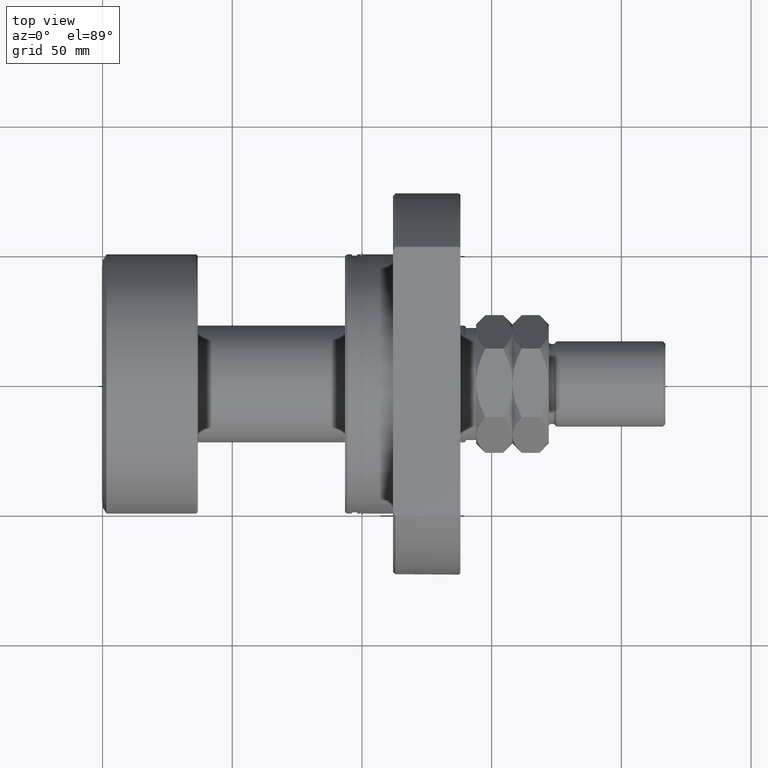
[diagram: clean part render]
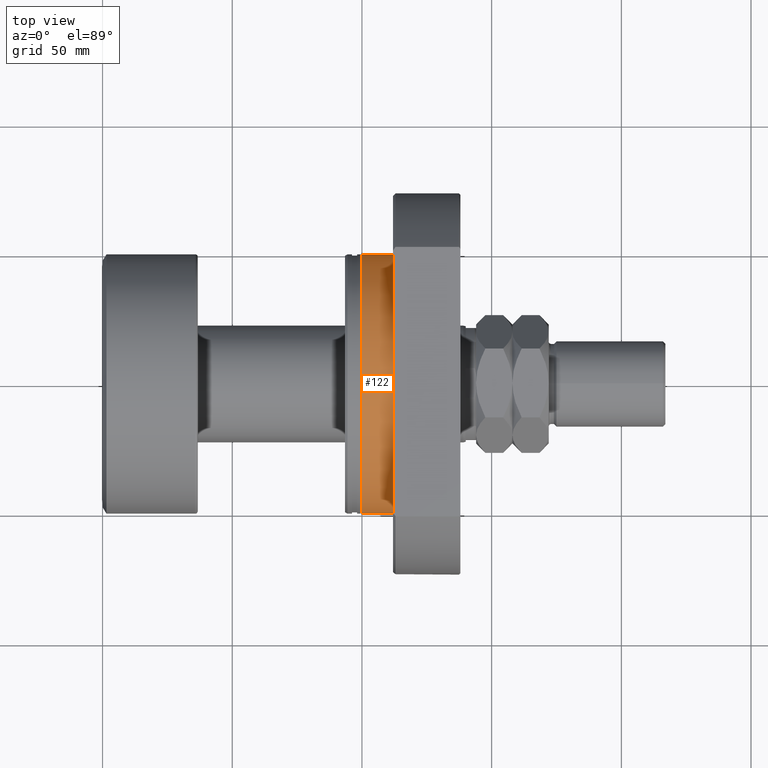
[diagram: same view with one face highlighted and labeled with its STEP entity id]
A machine part, top view. The second image highlights one B-rep face of the part: STEP entity #122.
In plain terms, the highlighted cylindrical surface (partial cylindrical patch) has radius 50 mm, axis along (1, 0, 0).
Its self-contained STEP definition (entity closure, byte-faithful):
#34 = CARTESIAN_POINT ( 'NONE',  ( 18.50000000000000355, -50.00000000000000000, 6.123233995736766085E-15 ) ) ;
#122 = ADVANCED_FACE ( 'NONE', ( #4687 ), #585, .T. ) ;
#182 = DIRECTION ( 'NONE',  ( 1.000000000000000000, 5.504030557965630938E-17, -0.000000000000000000 ) ) ;
#244 = DIRECTION ( 'NONE',  ( 1.000000000000000000, 5.504030557965630938E-17, -0.000000000000000000 ) ) ;
#529 = VERTEX_POINT ( 'NONE', #34 ) ;
#585 = CYLINDRICAL_SURFACE ( 'NONE', #1619, 50.00000000000000000 ) ;
#660 = CARTESIAN_POINT ( 'NONE',  ( 44.50000000000000000, 50.00000000000000000, 0.000000000000000000 ) ) ;
#711 = EDGE_CURVE ( 'NONE', #2192, #4571, #3127, .T. ) ;
#972 = DIRECTION ( 'NONE',  ( 1.000000000000000000, 5.504030557965630938E-17, -0.000000000000000000 ) ) ;
#1164 = ORIENTED_EDGE ( 'NONE', *, *, #2809, .F. ) ;
#1187 = CARTESIAN_POINT ( 'NONE',  ( 6.499999999999793054, -50.00000000000000000, 6.123233995736766085E-15 ) ) ;
#1459 = ORIENTED_EDGE ( 'NONE', *, *, #3808, .F. ) ;
#1514 = CARTESIAN_POINT ( 'NONE',  ( 44.50000000000000000, -50.00000000000000000, 6.123233995736766085E-15 ) ) ;
#1619 = AXIS2_PLACEMENT_3D ( 'NONE', #4708, #972, #3934 ) ;
#1668 = CARTESIAN_POINT ( 'NONE',  ( 18.50000000000000000, 1.018245653223641557E-15, 0.000000000000000000 ) ) ;
#1798 = VECTOR ( 'NONE', #244, 1000.000000000000000 ) ;
#1854 = ORIENTED_EDGE ( 'NONE', *, *, #711, .T. ) ;
#1928 = VERTEX_POINT ( 'NONE', #3055 ) ;
#2192 = VERTEX_POINT ( 'NONE', #2532 ) ;
#2280 = EDGE_CURVE ( 'NONE', #4571, #529, #4531, .T. ) ;
#2326 = CIRCLE ( 'NONE', #2895, 50.00000000000000000 ) ;
#2532 = CARTESIAN_POINT ( 'NONE',  ( 6.499999999999787725, 50.00000000000000000, 0.000000000000000000 ) ) ;
#2809 = EDGE_CURVE ( 'NONE', #1928, #529, #2326, .T. ) ;
#2895 = AXIS2_PLACEMENT_3D ( 'NONE', #1668, #182, #4188 ) ;
#3055 = CARTESIAN_POINT ( 'NONE',  ( 18.49999999999999645, 50.00000000000000000, 0.000000000000000000 ) ) ;
#3127 = CIRCLE ( 'NONE', #3201, 50.00000000000000000 ) ;
#3201 = AXIS2_PLACEMENT_3D ( 'NONE', #4038, #4337, #3283 ) ;
#3283 = DIRECTION ( 'NONE',  ( -5.204170427930421283E-17, 1.000000000000000000, 0.000000000000000000 ) ) ;
#3339 = DIRECTION ( 'NONE',  ( 1.000000000000000000, 5.504030557965630938E-17, -0.000000000000000000 ) ) ;
#3808 = EDGE_CURVE ( 'NONE', #2192, #1928, #4044, .T. ) ;
#3925 = VECTOR ( 'NONE', #3339, 1000.000000000000000 ) ;
#3934 = DIRECTION ( 'NONE',  ( 0.000000000000000000, 1.000000000000000000, 0.000000000000000000 ) ) ;
#4038 = CARTESIAN_POINT ( 'NONE',  ( 6.499999999999790390, 3.577619862677545540E-16, 0.000000000000000000 ) ) ;
#4044 = LINE ( 'NONE', #660, #1798 ) ;
#4188 = DIRECTION ( 'NONE',  ( -6.938893903907228378E-17, 1.000000000000000000, 0.000000000000000000 ) ) ;
#4337 = DIRECTION ( 'NONE',  ( 1.000000000000000000, 5.504030557965630938E-17, -0.000000000000000000 ) ) ;
#4393 = ORIENTED_EDGE ( 'NONE', *, *, #2280, .T. ) ;
#4531 = LINE ( 'NONE', #1514, #3925 ) ;
#4571 = VERTEX_POINT ( 'NONE', #1187 ) ;
#4687 = FACE_OUTER_BOUND ( 'NONE', #4688, .T. ) ;
#4688 = EDGE_LOOP ( 'NONE', ( #1854, #4393, #1164, #1459 ) ) ;
#4708 = CARTESIAN_POINT ( 'NONE',  ( 44.50000000000000000, 2.449293598294705724E-15, 0.000000000000000000 ) ) ;